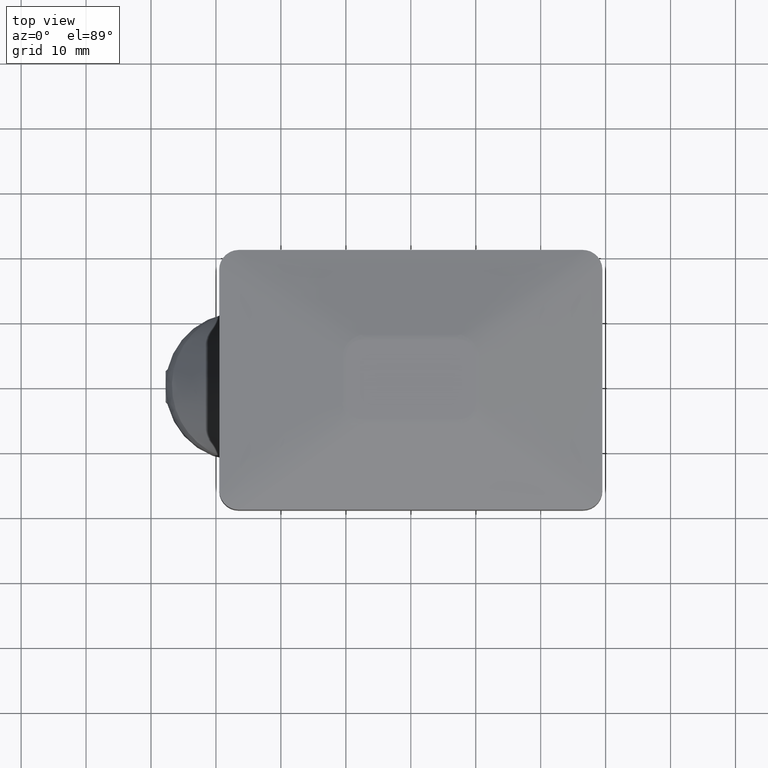
[diagram: clean part render]
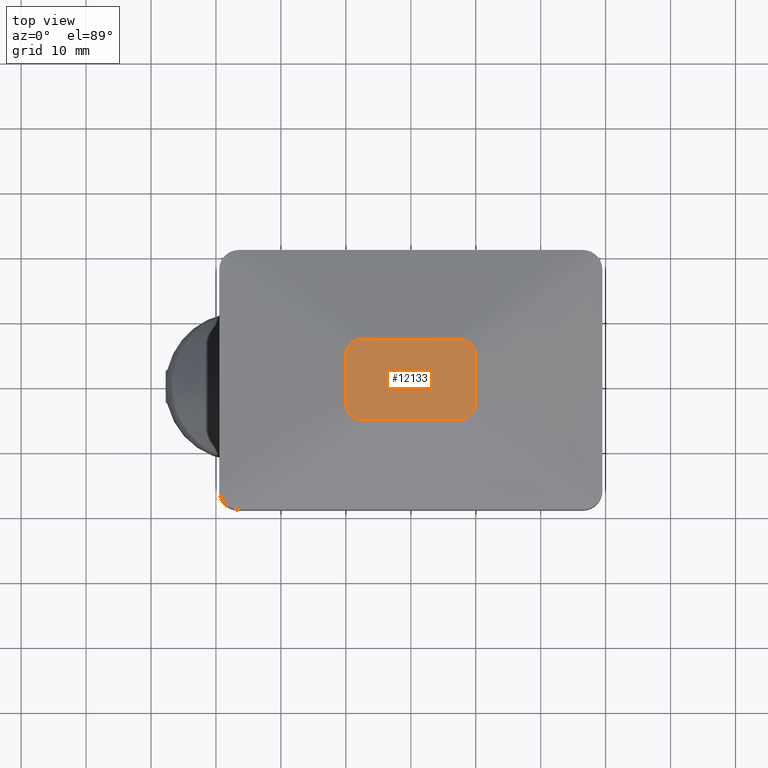
[diagram: same view with one face highlighted and labeled with its STEP entity id]
A machine part, top view. The second image highlights one B-rep face of the part: STEP entity #12133.
In plain terms, the highlighted planar face has unit normal (0, 0, 1).
Its self-contained STEP definition (entity closure, byte-faithful):
#64 = CARTESIAN_POINT ( 'NONE',  ( 7.249999999999984901, 6.117435130587418612, 14.00000000000000000 ) ) ;
#88 = CARTESIAN_POINT ( 'NONE',  ( 9.355375288534601097, -5.319267381521359361, 13.99999999999999645 ) ) ;
#214 = EDGE_CURVE ( 'NONE', #2291, #18070, #2853, .T. ) ;
#644 = CARTESIAN_POINT ( 'NONE',  ( -8.238999143423228588, 6.043119252401621289, 13.99999999999999822 ) ) ;
#703 = CARTESIAN_POINT ( 'NONE',  ( -9.100329542203384747, 5.571499440609103182, 13.99999999999999822 ) ) ;
#763 = CARTESIAN_POINT ( 'NONE',  ( -9.667422615241509476, 4.879687492280305960, 14.00000000000000711 ) ) ;
#949 = CARTESIAN_POINT ( 'NONE',  ( -8.949734190345159490, -5.692350414341665221, 14.00000000000000355 ) ) ;
#1079 = CARTESIAN_POINT ( 'NONE',  ( -8.644034864005313068, -5.881857126372239009, 14.00000000000000888 ) ) ;
#1354 = CARTESIAN_POINT ( 'NONE',  ( 8.225526673371129860, 6.047156924332635519, 13.99999999999999822 ) ) ;
#1364 = CARTESIAN_POINT ( 'NONE',  ( 7.250000000208237871, -6.117435130587424830, 14.00000000000000000 ) ) ;
#1412 = CARTESIAN_POINT ( 'NONE',  ( 8.137546750836806453, 6.070637420180208466, 13.99999999999998934 ) ) ;
#1432 = CARTESIAN_POINT ( 'NONE',  ( 9.979490168751432577, 0.5000000000271046519, 14.00000000000000000 ) ) ;
#1484 = CARTESIAN_POINT ( 'NONE',  ( 4.416666666880662895, -6.117435130587435488, 14.00000000000000000 ) ) ;
#1495 = CARTESIAN_POINT ( 'NONE',  ( 9.747963484372990095, -4.720725529859191028, 14.00000000000000533 ) ) ;
#1592 = CARTESIAN_POINT ( 'NONE',  ( -9.979490168751562251, -2.500000000013567369, 14.00000000000000000 ) ) ;
#1597 = CARTESIAN_POINT ( 'NONE',  ( 1.583333333553085920, -6.117435130587464798, 14.00000000000000000 ) ) ;
#1611 = CARTESIAN_POINT ( 'NONE',  ( 8.238999143560512550, -6.043119252360279248, 13.99999999999999822 ) ) ;
#2156 = CARTESIAN_POINT ( 'NONE',  ( -9.878895723163539699, 4.385872416604652990, 14.00000000000000711 ) ) ;
#2291 = VERTEX_POINT ( 'NONE', #7516 ) ;
#2480 = CARTESIAN_POINT ( 'NONE',  ( -7.961981471821357736, -6.104429062856662647, 13.99999999999995914 ) ) ;
#2639 = CARTESIAN_POINT ( 'NONE',  ( 7.249999999999984901, 6.117435130587418612, 14.00000000000000000 ) ) ;
#2757 = CARTESIAN_POINT ( 'NONE',  ( 9.979490168751585344, 3.500000000015556001, 14.00000000000000000 ) ) ;
#2804 = CARTESIAN_POINT ( 'NONE',  ( 9.349038815180911399, 5.326439414733248334, 13.99999999999999822 ) ) ;
#2853 = B_SPLINE_CURVE_WITH_KNOTS ( 'NONE', 3,
 ( #6825, #5477, #8292, #18097, #8466, #16394, #17877, #6726, #9354, #15046, #9477, #12049, #949, #1079, #10905, #17752, #14923, #2480, #6533, #5328, #12303, #3844 ),
 .UNSPECIFIED., .F., .F.,
 ( 4, 2, 2, 2, 2, 2, 2, 2, 2, 2, 4 ),
 ( 0.000000000000000000, 0.0002686122629490241497, 0.0005372245258980482994, 0.001074449051796095948, 0.001611673577694143489, 0.002148898103592191029, 0.002686122629490238570, 0.003223347155388286110, 0.003491959418337310314, 0.003760571681286334084, 0.004297796207184384661 ),
 .UNSPECIFIED. ) ;
#2872 = CARTESIAN_POINT ( 'NONE',  ( 9.924809572263304958, 4.214644380103083954, 14.00000000000001066 ) ) ;
#2935 = CARTESIAN_POINT ( 'NONE',  ( -9.979490168751581791, -3.500000000015547119, 14.00000000000000000 ) ) ;
#3082 = CARTESIAN_POINT ( 'NONE',  ( 8.152705490378668429, -6.066948659850242009, 13.99999999999996803 ) ) ;
#3196 = EDGE_CURVE ( 'NONE', #11883, #8994, #7432, .T. ) ;
#3209 = VERTEX_POINT ( 'NONE', #2639 ) ;
#3339 = CARTESIAN_POINT ( 'NONE',  ( 1.249999999999984679, 6.117435130587414172, 14.00000000000000000 ) ) ;
#3520 = CARTESIAN_POINT ( 'NONE',  ( -7.340686629767298577, 6.117435130587423053, 14.00000000000000355 ) ) ;
#3699 = CARTESIAN_POINT ( 'NONE',  ( -7.250000000024319213, 6.117435130587423053, 14.00000000000000000 ) ) ;
#3844 = CARTESIAN_POINT ( 'NONE',  ( -7.249999999774490611, -6.117435130587389303, 14.00000000000000000 ) ) ;
#4168 = CARTESIAN_POINT ( 'NONE',  ( 9.965287234530430638, 3.948882123650992337, 14.00000000000000355 ) ) ;
#4246 = EDGE_CURVE ( 'NONE', #8994, #3209, #10472, .T. ) ;
#4265 = CARTESIAN_POINT ( 'NONE',  ( -9.965521878220959806, 3.946676925390649071, 14.00000000000000888 ) ) ;
#4323 = CARTESIAN_POINT ( 'NONE',  ( 7.612746519166339709, -6.117435130587424830, 13.99999999999999645 ) ) ;
#4362 = CARTESIAN_POINT ( 'NONE',  ( -9.979490168751594226, 1.499999999986432853, 14.00000000000000000 ) ) ;
#4386 = CARTESIAN_POINT ( 'NONE',  ( 7.884771393260577632, -6.115467180783065615, 14.00000000000010125 ) ) ;
#4443 = AXIS2_PLACEMENT_3D ( 'NONE', #9398, #17559, #6520 ) ;
#4604 = VERTEX_POINT ( 'NONE', #17782 ) ;
#4933 = CARTESIAN_POINT ( 'NONE',  ( 3.249999999999984457, 6.117435130587391967, 14.00000000000000000 ) ) ;
#4936 = CARTESIAN_POINT ( 'NONE',  ( -9.355375288474137463, 5.319267381590593757, 14.00000000000000000 ) ) ;
#5049 = CARTESIAN_POINT ( 'NONE',  ( -7.612746518996233114, 6.117435130587407066, 13.99999999999999645 ) ) ;
#5110 = CARTESIAN_POINT ( 'NONE',  ( -7.703462334679138657, 6.119075463594477071, 14.00000000000004974 ) ) ;
#5328 = CARTESIAN_POINT ( 'NONE',  ( -7.606628739688993335, -6.118950205381000096, 13.99999999999984013 ) ) ;
#5467 = CARTESIAN_POINT ( 'NONE',  ( 7.428254092415825127, 6.117435130587413283, 13.99999999999999645 ) ) ;
#5477 = CARTESIAN_POINT ( 'NONE',  ( -9.979490168751580015, -3.590093499938036725, 14.00000000000000355 ) ) ;
#5580 = CARTESIAN_POINT ( 'NONE',  ( 9.465488534297204382, 5.186812378684851232, 13.99999999999998757 ) ) ;
#5604 = CARTESIAN_POINT ( 'NONE',  ( 8.655479388670379137, -5.875976479815103737, 13.99999999999999467 ) ) ;
#5644 = CARTESIAN_POINT ( 'NONE',  ( 9.092762279158046468, 5.578027190714700545, 13.99999999999999822 ) ) ;
#5660 = CARTESIAN_POINT ( 'NONE',  ( -7.249999999774490611, -6.117435130587389303, 14.00000000000000000 ) ) ;
#5711 = CARTESIAN_POINT ( 'NONE',  ( -9.979490168751594226, -3.166666666681554165, 14.00000000000000000 ) ) ;
#5794 = CARTESIAN_POINT ( 'NONE',  ( 8.961247241455582824, -5.683905033023208375, 13.99999999999999645 ) ) ;
#6013 = EDGE_CURVE ( 'NONE', #18070, #8755, #13896, .T. ) ;
#6105 = VERTEX_POINT ( 'NONE', #6132 ) ;
#6132 = CARTESIAN_POINT ( 'NONE',  ( -7.250000000024319213, 6.117435130587423053, 14.00000000000000000 ) ) ;
#6186 = EDGE_CURVE ( 'NONE', #6105, #4604, #8273, .T. ) ;
#6228 = CARTESIAN_POINT ( 'NONE',  ( -7.884771393101069670, 6.115467180803407565, 14.00000000000005151 ) ) ;
#6460 = CARTESIAN_POINT ( 'NONE',  ( -8.152705490235947039, 6.066948659885987638, 14.00000000000003020 ) ) ;
#6520 = DIRECTION ( 'NONE',  ( 1.000000000000000000, 0.000000000000000000, -0.000000000000000000 ) ) ;
#6533 = CARTESIAN_POINT ( 'NONE',  ( -7.873825539150450581, -6.116633524307248493, 13.99999999999983658 ) ) ;
#6726 = CARTESIAN_POINT ( 'NONE',  ( -9.745608761648858476, -4.725666260345334990, 14.00000000000001066 ) ) ;
#6825 = CARTESIAN_POINT ( 'NONE',  ( -9.979490168751581791, -3.500000000015547119, 14.00000000000000000 ) ) ;
#7017 = CARTESIAN_POINT ( 'NONE',  ( 9.979490168751597778, -3.589706437225727687, 14.00000000000000355 ) ) ;
#7075 = CARTESIAN_POINT ( 'NONE',  ( 9.979490168751585344, 3.500000000015556001, 14.00000000000000000 ) ) ;
#7080 = CARTESIAN_POINT ( 'NONE',  ( 9.100329542282453943, -5.571499440540303105, 13.99999999999999645 ) ) ;
#7209 = CARTESIAN_POINT ( 'NONE',  ( 9.974453378138315784, -3.858156765148732958, 14.00000000000000355 ) ) ;
#7366 = CARTESIAN_POINT ( 'NONE',  ( -9.979490168751599555, 3.499999999986432631, 14.00000000000000000 ) ) ;
#7432 = B_SPLINE_CURVE_WITH_KNOTS ( 'NONE', 3,
 ( #13812, #8361, #1432, #9758, #16611, #11188, #2757 ),
 .UNSPECIFIED., .F., .F.,
 ( 4, 3, 4 ),
 ( 0.000000000000000000, 0.006000000000000000125, 0.006999999999988451224 ),
 .UNSPECIFIED. ) ;
#7516 = CARTESIAN_POINT ( 'NONE',  ( -9.979490168751581791, -3.500000000015547119, 14.00000000000000000 ) ) ;
#7580 = CARTESIAN_POINT ( 'NONE',  ( 7.249999999999984901, 6.117435130587418612, 14.00000000000000000 ) ) ;
#8273 = B_SPLINE_CURVE_WITH_KNOTS ( 'NONE', 3,
 ( #3699, #3520, #13505, #5049, #5110, #6228, #14784, #6460, #644, #10457, #17556, #9097, #703, #4936, #9159, #763, #10584, #2156, #11975, #4265, #11508, #12960, #14358, #17224 ),
 .UNSPECIFIED., .F., .F.,
 ( 4, 2, 2, 2, 2, 2, 2, 2, 2, 2, 2, 4 ),
 ( 0.000000000000000000, 0.0002720168351069412061, 0.0005440336702138824122, 0.0008160505053208236183, 0.001088067340427764824, 0.001632101010641645936, 0.002176134680855527481, 0.002720168351069409025, 0.003264202021283290137, 0.003808235691497171681, 0.004080252526604113104, 0.004352269361711054094 ),
 .UNSPECIFIED. ) ;
#8292 = CARTESIAN_POINT ( 'NONE',  ( -9.981367658015242839, -3.680396571086074875, 14.00000000000000888 ) ) ;
#8361 = CARTESIAN_POINT ( 'NONE',  ( 9.979490168751604884, -1.499999999972895459, 14.00000000000000000 ) ) ;
#8456 = CARTESIAN_POINT ( 'NONE',  ( 9.745608761676841425, 4.725666260284908660, 14.00000000000000355 ) ) ;
#8466 = CARTESIAN_POINT ( 'NONE',  ( -9.965287234527938409, -3.948882123674325229, 13.99999999999998579 ) ) ;
#8664 = ORIENTED_EDGE ( 'NONE', *, *, #14487, .T. ) ;
#8755 = VERTEX_POINT ( 'NONE', #14679 ) ;
#8994 = VERTEX_POINT ( 'NONE', #13839 ) ;
#9097 = CARTESIAN_POINT ( 'NONE',  ( -8.961247241366077532, 5.683905033090587366, 14.00000000000000000 ) ) ;
#9159 = CARTESIAN_POINT ( 'NONE',  ( -9.471870041178549471, 5.178255762935124906, 14.00000000000000533 ) ) ;
#9354 = CARTESIAN_POINT ( 'NONE',  ( -9.664481939815644296, -4.885309439615596716, 13.99999999999999645 ) ) ;
#9398 = CARTESIAN_POINT ( 'NONE',  ( -7.250000000000001776, 3.499999999999998224, 14.00000000000000000 ) ) ;
#9477 = CARTESIAN_POINT ( 'NONE',  ( -9.349038815111635259, -5.326439414812261575, 13.99999999999999645 ) ) ;
#9582 = ORIENTED_EDGE ( 'NONE', *, *, #15680, .T. ) ;
#9758 = CARTESIAN_POINT ( 'NONE',  ( 9.979490168751546264, 2.500000000027104541, 14.00000000000000000 ) ) ;
#9802 = CARTESIAN_POINT ( 'NONE',  ( 8.949734190453495941, 5.692350414261530211, 13.99999999999998757 ) ) ;
#9825 = CARTESIAN_POINT ( 'NONE',  ( 9.965521878224430807, -3.946676925359713817, 13.99999999999999112 ) ) ;
#9893 = CARTESIAN_POINT ( 'NONE',  ( 9.667422615274729125, -4.879687492219280998, 13.99999999999999289 ) ) ;
#9954 = CARTESIAN_POINT ( 'NONE',  ( 9.979490168751585344, 3.590093499933269428, 14.00000000000000355 ) ) ;
#10204 = B_SPLINE_CURVE_WITH_KNOTS ( 'NONE', 3,
 ( #7580, #11974, #4933, #3339, #14660, #17496, #13387 ),
 .UNSPECIFIED., .F., .F.,
 ( 4, 3, 4 ),
 ( 0.000000000000000000, 0.006000000000000000125, 0.01450000000002430421 ),
 .UNSPECIFIED. ) ;
#10457 = CARTESIAN_POINT ( 'NONE',  ( -8.492070952868829181, 5.955192159663555529, 13.99999999999999822 ) ) ;
#10472 = B_SPLINE_CURVE_WITH_KNOTS ( 'NONE', 3,
 ( #7075, #9954, #15454, #12569, #4168, #2872, #12496, #8456, #15311, #5580, #2804, #5644, #9802, #16721, #15436, #1354, #1412, #11113, #16846, #16653, #5467, #64 ),
 .UNSPECIFIED., .F., .F.,
 ( 4, 2, 2, 2, 2, 2, 2, 2, 2, 2, 4 ),
 ( 0.000000000000000000, 0.0002686122629348729803, 0.0005372245258697459606, 0.001074449051739489319, 0.001611673577609232678, 0.002148898103478976036, 0.002686122629348719395, 0.003223347155218462753, 0.003491959418153333782, 0.003760571681088204377, 0.004297796206957946868 ),
 .UNSPECIFIED. ) ;
#10584 = CARTESIAN_POINT ( 'NONE',  ( -9.747963484346588103, 4.720725529916086849, 14.00000000000000888 ) ) ;
#10774 = EDGE_CURVE ( 'NONE', #3209, #6105, #10204, .T. ) ;
#10905 = CARTESIAN_POINT ( 'NONE',  ( -8.482566204280217903, -5.959653078707257023, 13.99999999999997335 ) ) ;
#10932 = ORIENTED_EDGE ( 'NONE', *, *, #6186, .T. ) ;
#11113 = CARTESIAN_POINT ( 'NONE',  ( 7.961981472008985428, 6.104429062829384911, 13.99999999999999289 ) ) ;
#11188 = CARTESIAN_POINT ( 'NONE',  ( 9.979490168751572909, 3.166666666686072329, 14.00000000000000000 ) ) ;
#11247 = CARTESIAN_POINT ( 'NONE',  ( -3.249999999774490611, -6.117435130587387526, 14.00000000000000000 ) ) ;
#11299 = CARTESIAN_POINT ( 'NONE',  ( -9.979490168751510737, -0.5000000000135672584, 14.00000000000000000 ) ) ;
#11318 = CARTESIAN_POINT ( 'NONE',  ( 9.878895723178009902, -4.385872416557178965, 14.00000000000000355 ) ) ;
#11383 = CARTESIAN_POINT ( 'NONE',  ( 9.925638554777286515, -4.210498955428382928, 13.99999999999998934 ) ) ;
#11501 = CARTESIAN_POINT ( 'NONE',  ( 9.981346872482895094, -3.679659480875128619, 14.00000000000000000 ) ) ;
#11508 = CARTESIAN_POINT ( 'NONE',  ( -9.974453378136285409, 3.858156765176246505, 14.00000000000000711 ) ) ;
#11883 = VERTEX_POINT ( 'NONE', #18139 ) ;
#11974 = CARTESIAN_POINT ( 'NONE',  ( 5.249999999999984901, 6.117435130587397296, 14.00000000000000000 ) ) ;
#11975 = CARTESIAN_POINT ( 'NONE',  ( -9.925638554768756450, 4.210498955469207161, 14.00000000000000533 ) ) ;
#12049 = CARTESIAN_POINT ( 'NONE',  ( -9.092762279064048769, -5.578027190796057688, 13.99999999999999112 ) ) ;
#12133 = ADVANCED_FACE ( 'NONE', ( #12425 ), #13508, .T. ) ;
#12303 = CARTESIAN_POINT ( 'NONE',  ( -7.428254092199211733, -6.117435130587408842, 14.00000000000000355 ) ) ;
#12425 = FACE_OUTER_BOUND ( 'NONE', #13358, .T. ) ;
#12496 = CARTESIAN_POINT ( 'NONE',  ( 9.877107517059609876, 4.391493385131734151, 14.00000000000000533 ) ) ;
#12535 = ORIENTED_EDGE ( 'NONE', *, *, #6013, .T. ) ;
#12569 = CARTESIAN_POINT ( 'NONE',  ( 9.974340041466321694, 3.859799126366086242, 13.99999999999999645 ) ) ;
#12633 = CARTESIAN_POINT ( 'NONE',  ( -7.249999999774490611, -6.117435130587389303, 14.00000000000000000 ) ) ;
#12689 = CARTESIAN_POINT ( 'NONE',  ( -9.979490168751571133, -2.833333333347560323, 14.00000000000000000 ) ) ;
#12710 = CARTESIAN_POINT ( 'NONE',  ( 9.979490168751599555, -3.499999999972895459, 14.00000000000000000 ) ) ;
#12761 = CARTESIAN_POINT ( 'NONE',  ( -5.249999999774490611, -6.117435130587381309, 14.00000000000000000 ) ) ;
#12773 = CARTESIAN_POINT ( 'NONE',  ( 7.703462334846166826, -6.119075463608059984, 14.00000000000010125 ) ) ;
#12827 = CARTESIAN_POINT ( 'NONE',  ( 7.250000000208237871, -6.117435130587424830, 14.00000000000000000 ) ) ;
#12896 = ORIENTED_EDGE ( 'NONE', *, *, #3196, .T. ) ;
#12960 = CARTESIAN_POINT ( 'NONE',  ( -9.981346872483058519, 3.679659480895841384, 14.00000000000000711 ) ) ;
#13358 = EDGE_LOOP ( 'NONE', ( #12535, #9582, #12896, #15103, #13735, #10932, #8664, #16626 ) ) ;
#13387 = CARTESIAN_POINT ( 'NONE',  ( -7.250000000024319213, 6.117435130587423053, 14.00000000000000000 ) ) ;
#13505 = CARTESIAN_POINT ( 'NONE',  ( -7.431373259510277940, 6.117435130587407954, 14.00000000000000000 ) ) ;
#13508 = PLANE ( 'NONE',  #4443 ) ;
#13735 = ORIENTED_EDGE ( 'NONE', *, *, #10774, .T. ) ;
#13812 = CARTESIAN_POINT ( 'NONE',  ( 9.979490168751599555, -3.499999999972895459, 14.00000000000000000 ) ) ;
#13839 = CARTESIAN_POINT ( 'NONE',  ( 9.979490168751585344, 3.500000000015556001, 14.00000000000000000 ) ) ;
#13896 = B_SPLINE_CURVE_WITH_KNOTS ( 'NONE', 3,
 ( #12633, #12761, #11247, #15448, #1597, #1484, #1364 ),
 .UNSPECIFIED., .F., .F.,
 ( 4, 3, 4 ),
 ( 0.000000000000000000, 0.006000000000000000125, 0.01449999999998272983 ),
 .UNSPECIFIED. ) ;
#14056 = CARTESIAN_POINT ( 'NONE',  ( 7.975811895252244987, -6.102421437119996739, 13.99999999999996447 ) ) ;
#14116 = CARTESIAN_POINT ( 'NONE',  ( 8.492070952990173893, -5.955192159608484026, 13.99999999999999822 ) ) ;
#14241 = CARTESIAN_POINT ( 'NONE',  ( 9.471870041229326631, -5.178255762867784107, 13.99999999999999467 ) ) ;
#14358 = CARTESIAN_POINT ( 'NONE',  ( -9.979490168751588897, 3.589706437242811354, 14.00000000000000355 ) ) ;
#14487 = EDGE_CURVE ( 'NONE', #4604, #2291, #17976, .T. ) ;
#14660 = CARTESIAN_POINT ( 'NONE',  ( -1.583333333341450100, 6.117435130587445258, 14.00000000000000000 ) ) ;
#14679 = CARTESIAN_POINT ( 'NONE',  ( 7.250000000208237871, -6.117435130587424830, 14.00000000000000000 ) ) ;
#14784 = CARTESIAN_POINT ( 'NONE',  ( -7.975811895097727700, 6.102421437143441096, 14.00000000000003197 ) ) ;
#14923 = CARTESIAN_POINT ( 'NONE',  ( -8.137546750660110462, -6.070637420223198077, 13.99999999999996270 ) ) ;
#15046 = CARTESIAN_POINT ( 'NONE',  ( -9.465488534238735596, -5.186812378761742615, 14.00000000000000000 ) ) ;
#15103 = ORIENTED_EDGE ( 'NONE', *, *, #4246, .T. ) ;
#15311 = CARTESIAN_POINT ( 'NONE',  ( 9.664481939851986780, 4.885309439548876753, 13.99999999999999645 ) ) ;
#15436 = CARTESIAN_POINT ( 'NONE',  ( 8.482566204428110268, 5.959653078640645418, 14.00000000000000000 ) ) ;
#15448 = CARTESIAN_POINT ( 'NONE',  ( -1.249999999774490611, -6.117435130587419501, 14.00000000000000000 ) ) ;
#15454 = CARTESIAN_POINT ( 'NONE',  ( 9.981367658015038558, 3.680396571076496315, 14.00000000000000000 ) ) ;
#15680 = EDGE_CURVE ( 'NONE', #8755, #11883, #17715, .T. ) ;
#16394 = CARTESIAN_POINT ( 'NONE',  ( -9.924809572255915313, -4.214644380140076585, 13.99999999999998224 ) ) ;
#16611 = CARTESIAN_POINT ( 'NONE',  ( 9.979490168751565804, 2.833333333356588213, 14.00000000000000000 ) ) ;
#16626 = ORIENTED_EDGE ( 'NONE', *, *, #214, .T. ) ;
#16653 = CARTESIAN_POINT ( 'NONE',  ( 7.606628739900540559, 6.118950205423045574, 14.00000000000002132 ) ) ;
#16721 = CARTESIAN_POINT ( 'NONE',  ( 8.644034864140365926, 5.881857126301897054, 13.99999999999998934 ) ) ;
#16846 = CARTESIAN_POINT ( 'NONE',  ( 7.873825539343366486, 6.116633524282934609, 14.00000000000002309 ) ) ;
#16870 = CARTESIAN_POINT ( 'NONE',  ( 7.431373259687290123, -6.117435130587425718, 14.00000000000000178 ) ) ;
#16990 = CARTESIAN_POINT ( 'NONE',  ( 7.340686629947764885, -6.117435130587427494, 14.00000000000000178 ) ) ;
#17224 = CARTESIAN_POINT ( 'NONE',  ( -9.979490168751599555, 3.499999999986432631, 14.00000000000000000 ) ) ;
#17496 = CARTESIAN_POINT ( 'NONE',  ( -4.416666666682885101, 6.117435130587463021, 14.00000000000000000 ) ) ;
#17556 = CARTESIAN_POINT ( 'NONE',  ( -8.655479388556342357, 5.875976479875345326, 14.00000000000000533 ) ) ;
#17559 = DIRECTION ( 'NONE',  ( 0.000000000000000000, -0.000000000000000000, 1.000000000000000000 ) ) ;
#17715 = B_SPLINE_CURVE_WITH_KNOTS ( 'NONE', 3,
 ( #12827, #16990, #16870, #4323, #12773, #4386, #14056, #3082, #1611, #14116, #5604, #5794, #7080, #88, #14241, #9893, #1495, #11318, #11383, #9825, #7209, #11501, #7017, #12710 ),
 .UNSPECIFIED., .F., .F.,
 ( 4, 2, 2, 2, 2, 2, 2, 2, 2, 2, 2, 4 ),
 ( 0.000000000000000000, 0.0002720168350965625182, 0.0005440336701931250364, 0.0008160505052896901024, 0.001088067340386255060, 0.001632101010579384325, 0.002176134680772513590, 0.002720168350965642638, 0.003264202021158771252, 0.003808235691351900300, 0.004080252526448463306, 0.004352269361545027179 ),
 .UNSPECIFIED. ) ;
#17752 = CARTESIAN_POINT ( 'NONE',  ( -8.225526673199489380, -6.047156924383114251, 13.99999999999996980 ) ) ;
#17782 = CARTESIAN_POINT ( 'NONE',  ( -9.979490168751599555, 3.499999999986432631, 14.00000000000000000 ) ) ;
#17877 = CARTESIAN_POINT ( 'NONE',  ( -9.877107517045786267, -4.391493385177647646, 14.00000000000000888 ) ) ;
#17976 = B_SPLINE_CURVE_WITH_KNOTS ( 'NONE', 3,
 ( #7366, #4362, #11299, #1592, #12689, #5711, #2935 ),
 .UNSPECIFIED., .F., .F.,
 ( 4, 3, 4 ),
 ( 0.000000000000000000, 0.006000000000000000125, 0.007000000000001980333 ),
 .UNSPECIFIED. ) ;
#18070 = VERTEX_POINT ( 'NONE', #5660 ) ;
#18097 = CARTESIAN_POINT ( 'NONE',  ( -9.974340041464962781, -3.859799126385024870, 14.00000000000000533 ) ) ;
#18139 = CARTESIAN_POINT ( 'NONE',  ( 9.979490168751599555, -3.499999999972895459, 14.00000000000000000 ) ) ;